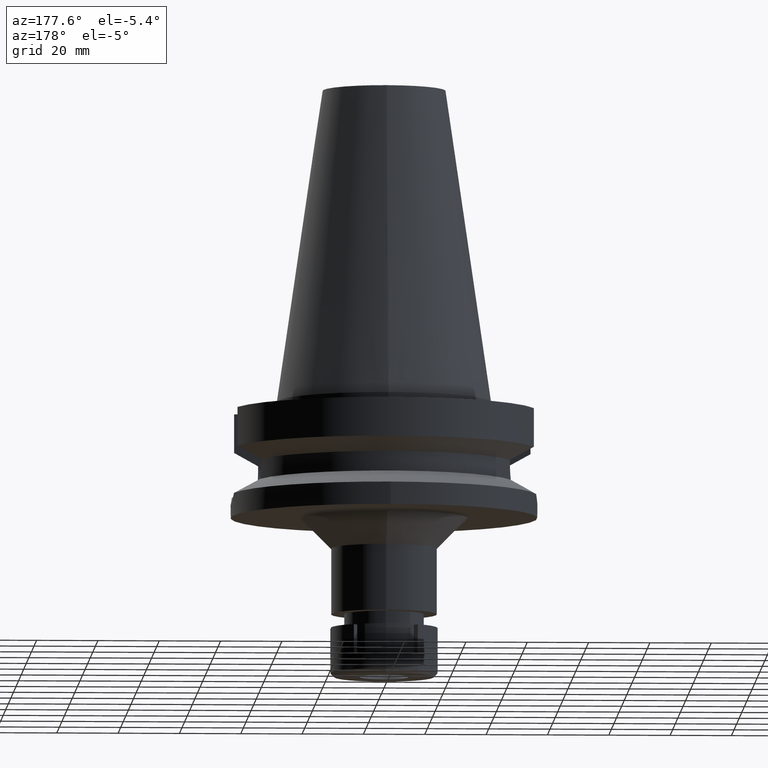
[diagram: clean part render]
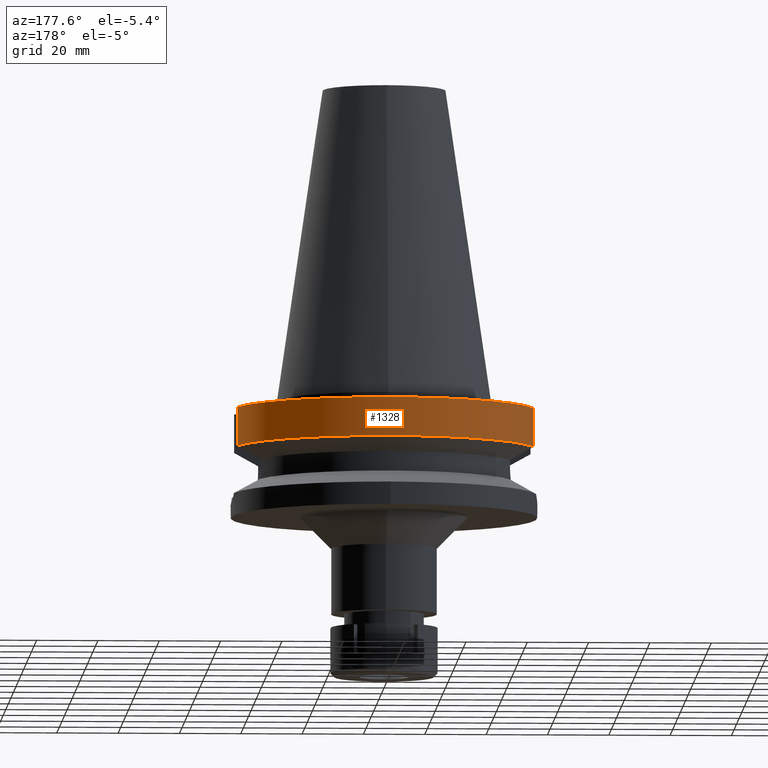
[diagram: same view with one face highlighted and labeled with its STEP entity id]
A machine part, auxiliary view. The second image highlights one B-rep face of the part: STEP entity #1328.
In plain terms, the highlighted cylindrical surface (partial cylindrical patch) has radius 50 mm, axis along (0, 0, -1).
Its self-contained STEP definition (entity closure, byte-faithful):
#25 = DIRECTION ( 'NONE',  ( 0.0000000000000000000, 1.000000000000000000, 0.0000000000000000000 ) ) ;
#85 = ORIENTED_EDGE ( 'NONE', *, *, #2252, .F. ) ;
#481 = ORIENTED_EDGE ( 'NONE', *, *, #2509, .T. ) ;
#570 = FACE_OUTER_BOUND ( 'NONE', #3505, .T. ) ;
#629 = VECTOR ( 'NONE', #2842, 1000.000000000000114 ) ;
#645 = EDGE_CURVE ( 'NONE', #1599, #2987, #3576, .T. ) ;
#880 = DIRECTION ( 'NONE',  ( 0.0000000000000000000, -1.000000000000000000, 0.0000000000000000000 ) ) ;
#1282 = ORIENTED_EDGE ( 'NONE', *, *, #1865, .F. ) ;
#1316 = DIRECTION ( 'NONE',  ( 8.044005528565599707E-08, 3.024830204977849999E-07, -0.9999999999999510392 ) ) ;
#1328 = ADVANCED_FACE ( 'NONE', ( #570 ), #1673, .T. ) ;
#1392 = CARTESIAN_POINT ( 'NONE',  ( 0.0000000000000000000, 2.583882281520999630E-14, 110.9900000000000091 ) ) ;
#1599 = VERTEX_POINT ( 'NONE', #1868 ) ;
#1618 = VERTEX_POINT ( 'NONE', #2692 ) ;
#1673 = CYLINDRICAL_SURFACE ( 'NONE', #3512, 50.00000000000000000 ) ;
#1865 = EDGE_CURVE ( 'NONE', #1599, #1618, #2133, .T. ) ;
#1868 = CARTESIAN_POINT ( 'NONE',  ( -48.32057015392000210, 12.84999999999999964, -3.000000000000000000 ) ) ;
#1918 = DIRECTION ( 'NONE',  ( 0.0000000000000000000, 0.0000000000000000000, -1.000000000000000000 ) ) ;
#1972 = LINE ( 'NONE', #2561, #629 ) ;
#2133 = LINE ( 'NONE', #2673, #3166 ) ;
#2163 = CARTESIAN_POINT ( 'NONE',  ( 0.0000000000000000000, 2.583882281520999630E-14, -3.000000000000000000 ) ) ;
#2252 = EDGE_CURVE ( 'NONE', #3611, #2987, #1972, .T. ) ;
#2376 = AXIS2_PLACEMENT_3D ( 'NONE', #2557, #2787, #25 ) ;
#2509 = EDGE_CURVE ( 'NONE', #3611, #1618, #2731, .T. ) ;
#2528 = ORIENTED_EDGE ( 'NONE', *, *, #645, .T. ) ;
#2557 = CARTESIAN_POINT ( 'NONE',  ( 0.0000000000000000000, 1.006319759053999930E-14, -15.66269223573000069 ) ) ;
#2561 = CARTESIAN_POINT ( 'NONE',  ( 48.32056913385999763, 12.85000383578999994, -15.66265787506000073 ) ) ;
#2673 = CARTESIAN_POINT ( 'NONE',  ( -48.32057015392000210, 12.84999999999999964, -3.000000000000000000 ) ) ;
#2692 = CARTESIAN_POINT ( 'NONE',  ( -48.32056913534000131, 12.85000383024000037, -15.66265792479000218 ) ) ;
#2731 = CIRCLE ( 'NONE', #2376, 50.00000000000000000 ) ;
#2787 = DIRECTION ( 'NONE',  ( 0.0000000000000000000, 0.0000000000000000000, 1.000000000000000000 ) ) ;
#2790 = DIRECTION ( 'NONE',  ( 0.0000000000000000000, 0.0000000000000000000, -1.000000000000000000 ) ) ;
#2842 = DIRECTION ( 'NONE',  ( 8.055664712649598102E-08, -3.029214450762849678E-07, 0.9999999999999509281 ) ) ;
#2987 = VERTEX_POINT ( 'NONE', #3605 ) ;
#2999 = DIRECTION ( 'NONE',  ( 0.0000000000000000000, 1.000000000000000000, 0.0000000000000000000 ) ) ;
#3166 = VECTOR ( 'NONE', #1316, 1000.000000000000000 ) ;
#3282 = AXIS2_PLACEMENT_3D ( 'NONE', #2163, #1918, #2999 ) ;
#3385 = CARTESIAN_POINT ( 'NONE',  ( 48.32056913385999763, 12.85000383578999994, -15.66265787506000073 ) ) ;
#3505 = EDGE_LOOP ( 'NONE', ( #1282, #2528, #85, #481 ) ) ;
#3512 = AXIS2_PLACEMENT_3D ( 'NONE', #1392, #2790, #880 ) ;
#3576 = CIRCLE ( 'NONE', #3282, 50.00000000000000000 ) ;
#3605 = CARTESIAN_POINT ( 'NONE',  ( 48.32057015392000210, 12.84999999999999964, -3.000000000000000000 ) ) ;
#3611 = VERTEX_POINT ( 'NONE', #3385 ) ;